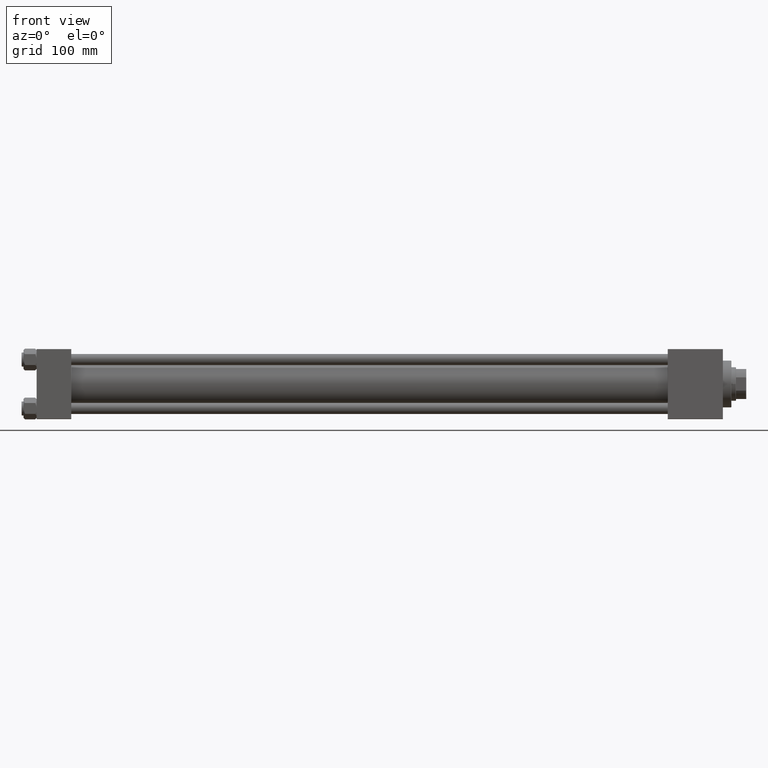
[diagram: clean part render]
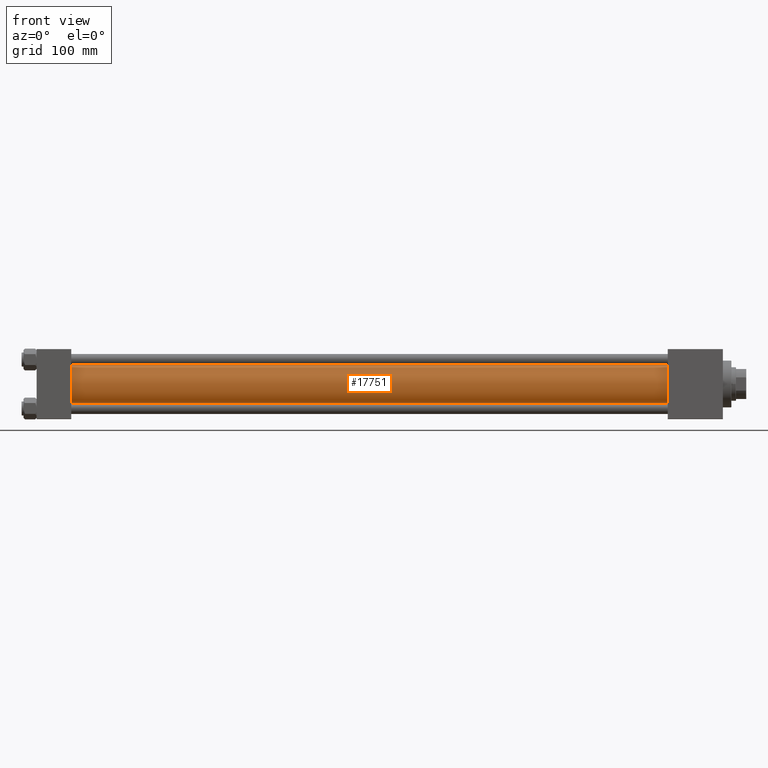
[diagram: same view with one face highlighted and labeled with its STEP entity id]
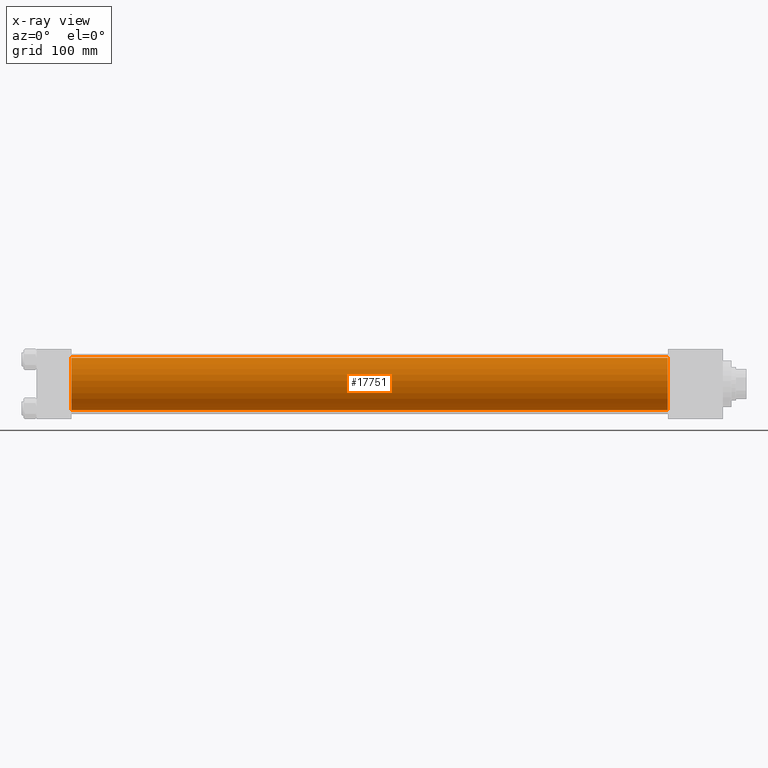
[diagram: x-ray of the same camera — body ghosted, the highlighted face saturated]
A machine part, front view. The second image highlights one B-rep face of the part: STEP entity #17751.
The next image is the same camera in x-ray: the body ghosted, the highlighted face saturated — about 0% of this face is hidden behind the body in this view.
In plain terms, the highlighted cylindrical surface (edge-blend (fillet) strip) has radius 28 mm, axis along (-1, -0, -0).
Its self-contained STEP definition (entity closure, byte-faithful):
#2241 = VERTEX_POINT ( 'NONE', #16187 ) ;
#3505 = AXIS2_PLACEMENT_3D ( 'NONE', #6235, #25297, #28856 ) ;
#4880 = VECTOR ( 'NONE', #12766, 1000.000000000000000 ) ;
#5216 = ORIENTED_EDGE ( 'NONE', *, *, #42834, .T. ) ;
#5469 = DIRECTION ( 'NONE',  ( 0.000000000000000000, 0.000000000000000000, 1.000000000000000000 ) ) ;
#5631 = CARTESIAN_POINT ( 'NONE',  ( 37.00000000000003553, 8.269258236473784371E-16, -28.00000000000000000 ) ) ;
#6235 = CARTESIAN_POINT ( 'NONE',  ( 675.0000000000000000, -2.602085213965210642E-15, 0.000000000000000000 ) ) ;
#8687 = ORIENTED_EDGE ( 'NONE', *, *, #17046, .F. ) ;
#8718 = LINE ( 'NONE', #18592, #10048 ) ;
#10048 = VECTOR ( 'NONE', #49066, 1000.000000000000000 ) ;
#12766 = DIRECTION ( 'NONE',  ( -1.000000000000000000, -0.000000000000000000, -0.000000000000000000 ) ) ;
#12859 = CARTESIAN_POINT ( 'NONE',  ( 37.00000000000003553, -2.602085213965210642E-15, 28.00000000000000000 ) ) ;
#14251 = VERTEX_POINT ( 'NONE', #5631 ) ;
#14432 = EDGE_LOOP ( 'NONE', ( #8687, #36903, #36371, #5216 ) ) ;
#16187 = CARTESIAN_POINT ( 'NONE',  ( 675.0000000000000000, 8.269258236473784371E-16, -28.00000000000000000 ) ) ;
#17046 = EDGE_CURVE ( 'NONE', #2241, #14251, #23700, .T. ) ;
#17403 = CARTESIAN_POINT ( 'NONE',  ( 675.0000000000000000, -2.602085213965210642E-15, 0.000000000000000000 ) ) ;
#17751 = ADVANCED_FACE ( 'NONE', ( #29107 ), #29352, .T. ) ;
#18592 = CARTESIAN_POINT ( 'NONE',  ( 675.0000000000000000, -2.602085213965210642E-15, 28.00000000000000000 ) ) ;
#20967 = DIRECTION ( 'NONE',  ( -1.000000000000000000, -0.000000000000000000, -0.000000000000000000 ) ) ;
#21717 = CARTESIAN_POINT ( 'NONE',  ( 675.0000000000000000, -2.602085213965210642E-15, 28.00000000000000000 ) ) ;
#21808 = VERTEX_POINT ( 'NONE', #21717 ) ;
#23700 = LINE ( 'NONE', #47550, #4880 ) ;
#25297 = DIRECTION ( 'NONE',  ( 1.000000000000000000, 0.000000000000000000, 0.000000000000000000 ) ) ;
#28856 = DIRECTION ( 'NONE',  ( 0.000000000000000000, 0.000000000000000000, -1.000000000000000000 ) ) ;
#29107 = FACE_OUTER_BOUND ( 'NONE', #14432, .T. ) ;
#29352 = CYLINDRICAL_SURFACE ( 'NONE', #34897, 28.00000000000000000 ) ;
#31803 = DIRECTION ( 'NONE',  ( 0.000000000000000000, 0.000000000000000000, 1.000000000000000000 ) ) ;
#32322 = EDGE_CURVE ( 'NONE', #21808, #2241, #48139, .T. ) ;
#32704 = EDGE_CURVE ( 'NONE', #21808, #41610, #8718, .T. ) ;
#34897 = AXIS2_PLACEMENT_3D ( 'NONE', #17403, #20967, #5469 ) ;
#36371 = ORIENTED_EDGE ( 'NONE', *, *, #32704, .T. ) ;
#36903 = ORIENTED_EDGE ( 'NONE', *, *, #32322, .F. ) ;
#39917 = DIRECTION ( 'NONE',  ( 1.000000000000000000, -0.000000000000000000, 0.000000000000000000 ) ) ;
#41610 = VERTEX_POINT ( 'NONE', #12859 ) ;
#42669 = AXIS2_PLACEMENT_3D ( 'NONE', #43211, #39917, #31803 ) ;
#42834 = EDGE_CURVE ( 'NONE', #41610, #14251, #49248, .T. ) ;
#43211 = CARTESIAN_POINT ( 'NONE',  ( 37.00000000000003553, -2.602085213965210642E-15, 0.000000000000000000 ) ) ;
#47550 = CARTESIAN_POINT ( 'NONE',  ( 675.0000000000000000, 8.269258236473784371E-16, -28.00000000000000000 ) ) ;
#48139 = CIRCLE ( 'NONE', #3505, 28.00000000000000000 ) ;
#49066 = DIRECTION ( 'NONE',  ( -1.000000000000000000, -0.000000000000000000, -0.000000000000000000 ) ) ;
#49248 = CIRCLE ( 'NONE', #42669, 28.00000000000000000 ) ;